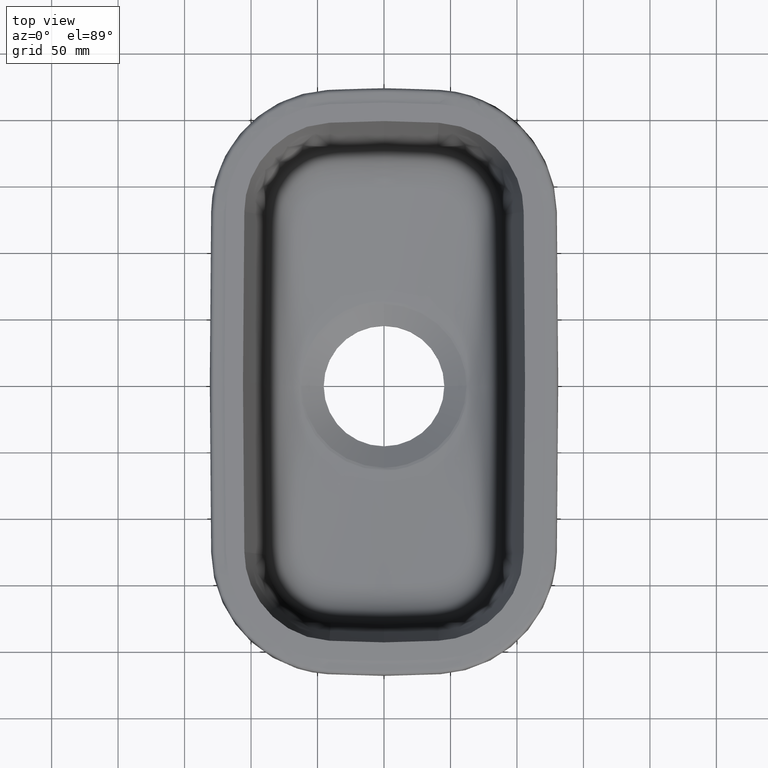
[diagram: clean part render]
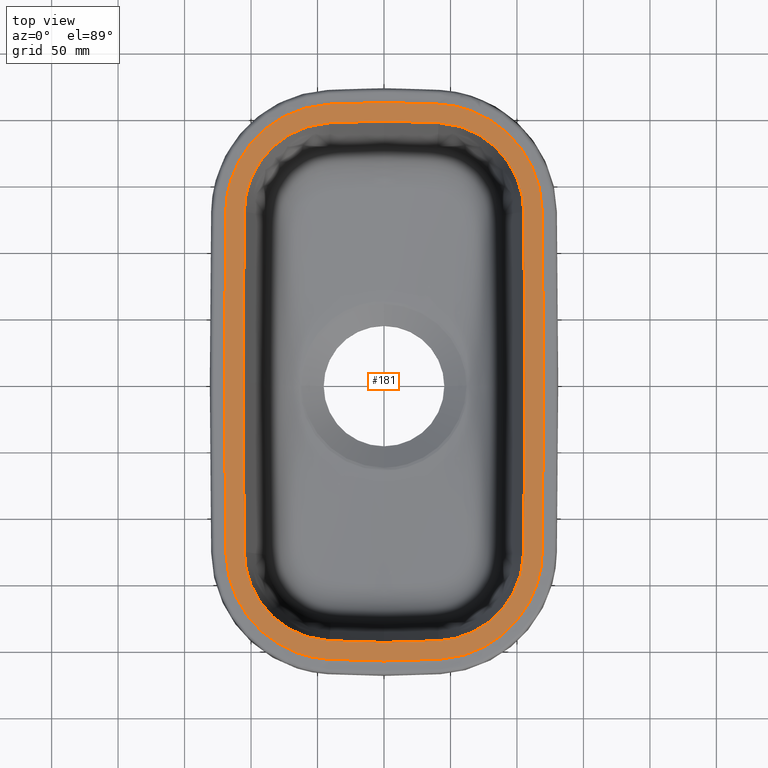
[diagram: same view with one face highlighted and labeled with its STEP entity id]
A machine part, top view. The second image highlights one B-rep face of the part: STEP entity #181.
In plain terms, the highlighted planar face has unit normal (0, 0, 1).
Its self-contained STEP definition (entity closure, byte-faithful):
#45=FACE_BOUND('',#368,.T.);
#46=FACE_BOUND('',#369,.T.);
#55=PLANE('',#1298);
#181=ADVANCED_FACE('',(#45,#46),#55,.T.);
#368=EDGE_LOOP('',(#782,#783,#784,#785,#786,#787,#788,#789,#790,#791,#792,
#793));
#369=EDGE_LOOP('',(#794,#795,#796,#797,#798,#799,#800,#801,#802,#803,#804,
#805));
#424=(
BOUNDED_CURVE()
B_SPLINE_CURVE(3,(#73449,#73450,#73451,#73452,#73453,#73454,#73455),
 .UNSPECIFIED.,.F.,.F.)
B_SPLINE_CURVE_WITH_KNOTS((4,1,1,1,4),(0.,0.25,0.5,0.75,1.),
 .UNSPECIFIED.)
CURVE()
GEOMETRIC_REPRESENTATION_ITEM()
RATIONAL_B_SPLINE_CURVE((1.,0.955564956617656,0.888912391544141,0.855586109007383,
0.888912391544141,0.955564956617656,1.))
REPRESENTATION_ITEM('')
);
#426=(
BOUNDED_CURVE()
B_SPLINE_CURVE(3,(#74508,#74509,#74510,#74511,#74512,#74513,#74514),
 .UNSPECIFIED.,.F.,.F.)
B_SPLINE_CURVE_WITH_KNOTS((4,1,1,1,4),(0.,0.25,0.5,0.75,1.),
 .UNSPECIFIED.)
CURVE()
GEOMETRIC_REPRESENTATION_ITEM()
RATIONAL_B_SPLINE_CURVE((1.,0.955564956617656,0.888912391544141,0.855586109007383,
0.888912391544141,0.955564956617656,1.))
REPRESENTATION_ITEM('')
);
#428=(
BOUNDED_CURVE()
B_SPLINE_CURVE(3,(#75503,#75504,#75505,#75506,#75507,#75508,#75509),
 .UNSPECIFIED.,.F.,.F.)
B_SPLINE_CURVE_WITH_KNOTS((4,1,1,1,4),(0.,0.25,0.5,0.75,1.),
 .UNSPECIFIED.)
CURVE()
GEOMETRIC_REPRESENTATION_ITEM()
RATIONAL_B_SPLINE_CURVE((1.,0.955564956617656,0.888912391544141,0.855586109007383,
0.888912391544141,0.955564956617656,1.))
REPRESENTATION_ITEM('')
);
#429=(
BOUNDED_CURVE()
B_SPLINE_CURVE(3,(#75999,#76000,#76001,#76002,#76003,#76004,#76005),
 .UNSPECIFIED.,.F.,.F.)
B_SPLINE_CURVE_WITH_KNOTS((4,1,1,1,4),(0.,0.25,0.5,0.75,1.),
 .UNSPECIFIED.)
CURVE()
GEOMETRIC_REPRESENTATION_ITEM()
RATIONAL_B_SPLINE_CURVE((1.,0.955564956617656,0.888912391544141,0.855586109007383,
0.888912391544141,0.955564956617656,1.))
REPRESENTATION_ITEM('')
);
#431=(
BOUNDED_CURVE()
B_SPLINE_CURVE(3,(#77064,#77065,#77066,#77067,#77068,#77069,#77070),
 .UNSPECIFIED.,.F.,.F.)
B_SPLINE_CURVE_WITH_KNOTS((4,1,1,1,4),(0.,0.25,0.5,0.75,1.),
 .UNSPECIFIED.)
CURVE()
GEOMETRIC_REPRESENTATION_ITEM()
RATIONAL_B_SPLINE_CURVE((1.,0.955564956617656,0.888912391544141,0.855586109007383,
0.888912391544141,0.955564956617656,1.))
REPRESENTATION_ITEM('')
);
#433=(
BOUNDED_CURVE()
B_SPLINE_CURVE(3,(#78099,#78100,#78101,#78102,#78103,#78104,#78105),
 .UNSPECIFIED.,.F.,.F.)
B_SPLINE_CURVE_WITH_KNOTS((4,1,1,1,4),(0.,0.25,0.5,0.75,1.),
 .UNSPECIFIED.)
CURVE()
GEOMETRIC_REPRESENTATION_ITEM()
RATIONAL_B_SPLINE_CURVE((1.,0.955564956617656,0.888912391544141,0.855586109007383,
0.888912391544141,0.955564956617656,1.))
REPRESENTATION_ITEM('')
);
#435=(
BOUNDED_CURVE()
B_SPLINE_CURVE(3,(#79134,#79135,#79136,#79137,#79138,#79139,#79140),
 .UNSPECIFIED.,.F.,.F.)
B_SPLINE_CURVE_WITH_KNOTS((4,1,1,1,4),(0.,0.25,0.5,0.75,1.),
 .UNSPECIFIED.)
CURVE()
GEOMETRIC_REPRESENTATION_ITEM()
RATIONAL_B_SPLINE_CURVE((1.,0.955564956617656,0.888912391544141,0.855586109007383,
0.888912391544141,0.955564956617656,1.))
REPRESENTATION_ITEM('')
);
#436=(
BOUNDED_CURVE()
B_SPLINE_CURVE(3,(#89732,#89733,#89734,#89735,#89736,#89737,#89738),
 .UNSPECIFIED.,.F.,.F.)
B_SPLINE_CURVE_WITH_KNOTS((4,1,1,1,4),(0.,0.25,0.5,0.75,1.),
 .UNSPECIFIED.)
CURVE()
GEOMETRIC_REPRESENTATION_ITEM()
RATIONAL_B_SPLINE_CURVE((1.,0.955564956617656,0.888912391544141,0.855586109007383,
0.888912391544141,0.955564956617656,1.))
REPRESENTATION_ITEM('')
);
#782=ORIENTED_EDGE('',*,*,#1068,.T.);
#783=ORIENTED_EDGE('',*,*,#1072,.T.);
#784=ORIENTED_EDGE('',*,*,#1075,.T.);
#785=ORIENTED_EDGE('',*,*,#1077,.T.);
#786=ORIENTED_EDGE('',*,*,#1079,.T.);
#787=ORIENTED_EDGE('',*,*,#1081,.T.);
#788=ORIENTED_EDGE('',*,*,#1084,.T.);
#789=ORIENTED_EDGE('',*,*,#1111,.T.);
#790=ORIENTED_EDGE('',*,*,#1120,.F.);
#791=ORIENTED_EDGE('',*,*,#1121,.F.);
#792=ORIENTED_EDGE('',*,*,#1122,.F.);
#793=ORIENTED_EDGE('',*,*,#1118,.T.);
#794=ORIENTED_EDGE('',*,*,#1087,.T.);
#795=ORIENTED_EDGE('',*,*,#1090,.T.);
#796=ORIENTED_EDGE('',*,*,#1092,.T.);
#797=ORIENTED_EDGE('',*,*,#1094,.T.);
#798=ORIENTED_EDGE('',*,*,#1096,.T.);
#799=ORIENTED_EDGE('',*,*,#1098,.T.);
#800=ORIENTED_EDGE('',*,*,#1100,.T.);
#801=ORIENTED_EDGE('',*,*,#1102,.T.);
#802=ORIENTED_EDGE('',*,*,#1104,.T.);
#803=ORIENTED_EDGE('',*,*,#1106,.T.);
#804=ORIENTED_EDGE('',*,*,#1108,.T.);
#805=ORIENTED_EDGE('',*,*,#1110,.T.);
#904=VERTEX_POINT('',#73456);
#905=VERTEX_POINT('',#73457);
#908=VERTEX_POINT('',#73962);
#909=VERTEX_POINT('',#74248);
#910=VERTEX_POINT('',#74515);
#911=VERTEX_POINT('',#74965);
#912=VERTEX_POINT('',#75229);
#914=VERTEX_POINT('',#75510);
#916=VERTEX_POINT('',#76006);
#917=VERTEX_POINT('',#76007);
#918=VERTEX_POINT('',#76504);
#919=VERTEX_POINT('',#76786);
#920=VERTEX_POINT('',#77071);
#921=VERTEX_POINT('',#77539);
#922=VERTEX_POINT('',#77821);
#923=VERTEX_POINT('',#78106);
#924=VERTEX_POINT('',#78574);
#925=VERTEX_POINT('',#78856);
#926=VERTEX_POINT('',#79141);
#927=VERTEX_POINT('',#79609);
#928=VERTEX_POINT('',#80143);
#931=VERTEX_POINT('',#89467);
#932=VERTEX_POINT('',#89731);
#933=VERTEX_POINT('',#89739);
#1068=EDGE_CURVE('',#904,#905,#424,.T.);
#1072=EDGE_CURVE('',#905,#908,#1223,.T.);
#1075=EDGE_CURVE('',#908,#909,#1226,.T.);
#1077=EDGE_CURVE('',#909,#910,#426,.T.);
#1079=EDGE_CURVE('',#910,#911,#1228,.T.);
#1081=EDGE_CURVE('',#911,#912,#1230,.T.);
#1084=EDGE_CURVE('',#912,#914,#428,.T.);
#1087=EDGE_CURVE('',#916,#917,#429,.T.);
#1090=EDGE_CURVE('',#917,#918,#1236,.T.);
#1092=EDGE_CURVE('',#918,#919,#1238,.T.);
#1094=EDGE_CURVE('',#919,#920,#431,.T.);
#1096=EDGE_CURVE('',#920,#921,#1240,.T.);
#1098=EDGE_CURVE('',#921,#922,#1242,.T.);
#1100=EDGE_CURVE('',#922,#923,#433,.T.);
#1102=EDGE_CURVE('',#923,#924,#1244,.T.);
#1104=EDGE_CURVE('',#924,#925,#1246,.T.);
#1106=EDGE_CURVE('',#925,#926,#435,.T.);
#1108=EDGE_CURVE('',#926,#927,#1248,.T.);
#1110=EDGE_CURVE('',#927,#916,#1250,.T.);
#1111=EDGE_CURVE('',#914,#928,#1251,.T.);
#1118=EDGE_CURVE('',#931,#904,#1258,.T.);
#1120=EDGE_CURVE('',#932,#928,#1260,.T.);
#1121=EDGE_CURVE('',#933,#932,#436,.T.);
#1122=EDGE_CURVE('',#931,#933,#1261,.T.);
#1223=B_SPLINE_CURVE_WITH_KNOTS('',3,(#73958,#73959,#73960,#73961),
 .UNSPECIFIED.,.F.,.F.,(4,4),(0.,1.),.UNSPECIFIED.);
#1226=B_SPLINE_CURVE_WITH_KNOTS('',3,(#74244,#74245,#74246,#74247),
 .UNSPECIFIED.,.F.,.F.,(4,4),(0.,1.),.UNSPECIFIED.);
#1228=B_SPLINE_CURVE_WITH_KNOTS('',3,(#74961,#74962,#74963,#74964),
 .UNSPECIFIED.,.F.,.F.,(4,4),(0.,1.),.UNSPECIFIED.);
#1230=B_SPLINE_CURVE_WITH_KNOTS('',3,(#75225,#75226,#75227,#75228),
 .UNSPECIFIED.,.F.,.F.,(4,4),(0.,1.),.UNSPECIFIED.);
#1236=B_SPLINE_CURVE_WITH_KNOTS('',3,(#76500,#76501,#76502,#76503),
 .UNSPECIFIED.,.F.,.F.,(4,4),(0.,1.),.UNSPECIFIED.);
#1238=B_SPLINE_CURVE_WITH_KNOTS('',3,(#76782,#76783,#76784,#76785),
 .UNSPECIFIED.,.F.,.F.,(4,4),(0.,1.),.UNSPECIFIED.);
#1240=B_SPLINE_CURVE_WITH_KNOTS('',3,(#77535,#77536,#77537,#77538),
 .UNSPECIFIED.,.F.,.F.,(4,4),(0.,1.),.UNSPECIFIED.);
#1242=B_SPLINE_CURVE_WITH_KNOTS('',3,(#77817,#77818,#77819,#77820),
 .UNSPECIFIED.,.F.,.F.,(4,4),(0.,1.),.UNSPECIFIED.);
#1244=B_SPLINE_CURVE_WITH_KNOTS('',3,(#78570,#78571,#78572,#78573),
 .UNSPECIFIED.,.F.,.F.,(4,4),(0.,1.),.UNSPECIFIED.);
#1246=B_SPLINE_CURVE_WITH_KNOTS('',3,(#78852,#78853,#78854,#78855),
 .UNSPECIFIED.,.F.,.F.,(4,4),(0.,1.),.UNSPECIFIED.);
#1248=B_SPLINE_CURVE_WITH_KNOTS('',3,(#79605,#79606,#79607,#79608),
 .UNSPECIFIED.,.F.,.F.,(4,4),(0.,1.),.UNSPECIFIED.);
#1250=B_SPLINE_CURVE_WITH_KNOTS('',3,(#79887,#79888,#79889,#79890),
 .UNSPECIFIED.,.F.,.F.,(4,4),(0.,1.),.UNSPECIFIED.);
#1251=B_SPLINE_CURVE_WITH_KNOTS('',3,(#80139,#80140,#80141,#80142),
 .UNSPECIFIED.,.F.,.F.,(4,4),(0.,1.),.UNSPECIFIED.);
#1258=B_SPLINE_CURVE_WITH_KNOTS('',3,(#89463,#89464,#89465,#89466),
 .UNSPECIFIED.,.F.,.F.,(4,4),(0.,1.),.UNSPECIFIED.);
#1260=B_SPLINE_CURVE_WITH_KNOTS('',3,(#89727,#89728,#89729,#89730),
 .UNSPECIFIED.,.F.,.F.,(4,4),(0.,1.),.UNSPECIFIED.);
#1261=B_SPLINE_CURVE_WITH_KNOTS('',3,(#89740,#89741,#89742,#89743),
 .UNSPECIFIED.,.F.,.F.,(4,4),(0.,1.),.UNSPECIFIED.);
#1298=AXIS2_PLACEMENT_3D('',#89744,#1377,#1378);
#1377=DIRECTION('',(0.,0.,1.));
#1378=DIRECTION('',(1.,0.,0.));
#73449=CARTESIAN_POINT('',(41.0691676275356,194.823956789116,175.499999415881));
#73450=CARTESIAN_POINT('',(49.9077053708104,194.293656981675,175.499999415881));
#73451=CARTESIAN_POINT('',(65.8286872184911,190.503901122272,175.499999415881));
#73452=CARTESIAN_POINT('',(87.5573389194098,175.273881621963,175.499999415881));
#73453=CARTESIAN_POINT('',(101.815524731004,152.895500624186,175.499999415881));
#73454=CARTESIAN_POINT('',(104.900352235661,136.82304742828,175.499999415881));
#73455=CARTESIAN_POINT('',(105.040837995178,127.96972990916,175.499999415881));
#73456=CARTESIAN_POINT('',(41.0691676274681,194.823956787992,175.49999940705));
#73457=CARTESIAN_POINT('',(105.040837995182,127.96972990916,175.499999417129));
#73958=CARTESIAN_POINT('',(105.040837995178,127.96972990916,175.499999415881));
#73959=CARTESIAN_POINT('',(105.718241805081,85.2802001068341,175.499999415881));
#73960=CARTESIAN_POINT('',(106.056943654781,42.6401000420839,175.499999415881));
#73961=CARTESIAN_POINT('',(106.056943544251,-3.12648205935684E-8,175.499999415881));
#73962=CARTESIAN_POINT('',(106.056943543616,6.22997404768117E-15,175.499999413456));
#74244=CARTESIAN_POINT('',(106.056943544251,3.12648240630153E-8,175.499999415881));
#74245=CARTESIAN_POINT('',(106.056943654781,-42.6401000420839,175.499999415881));
#74246=CARTESIAN_POINT('',(105.718241805081,-85.2802001068341,175.499999415881));
#74247=CARTESIAN_POINT('',(105.040837995178,-127.96972990916,175.499999415881));
#74248=CARTESIAN_POINT('',(105.040837995181,-127.96972990916,175.499999417121));
#74508=CARTESIAN_POINT('',(105.040837995178,-127.96972990916,175.499999415881));
#74509=CARTESIAN_POINT('',(104.900352235661,-136.82304742828,175.499999415881));
#74510=CARTESIAN_POINT('',(101.815524731004,-152.895500624186,175.499999415881));
#74511=CARTESIAN_POINT('',(87.5573389194097,-175.273881621963,175.499999415881));
#74512=CARTESIAN_POINT('',(65.8286872184911,-190.503901122272,175.499999415881));
#74513=CARTESIAN_POINT('',(49.9077053708104,-194.293656981675,175.499999415881));
#74514=CARTESIAN_POINT('',(41.0691676275356,-194.823956789116,175.499999415881));
#74515=CARTESIAN_POINT('',(41.0691676274681,-194.823956787992,175.499999407049));
#74961=CARTESIAN_POINT('',(41.0691676275356,-194.823956789116,175.499999415881));
#74962=CARTESIAN_POINT('',(27.255746873831,-195.65274256439,175.499999415881));
#74963=CARTESIAN_POINT('',(13.8143060345944,-196.056182208065,175.499999415881));
#74964=CARTESIAN_POINT('',(-1.9432021202271E-12,-196.056182208065,175.499999415881));
#74965=CARTESIAN_POINT('',(7.74397140523785E-23,-196.056182208068,175.499999417129));
#75225=CARTESIAN_POINT('',(1.9432021202271E-12,-196.056182208065,175.499999415881));
#75226=CARTESIAN_POINT('',(-13.8143060345944,-196.056182208065,175.499999415881));
#75227=CARTESIAN_POINT('',(-27.255746873831,-195.65274256439,175.499999415881));
#75228=CARTESIAN_POINT('',(-41.0691676275356,-194.823956789116,175.499999415881));
#75229=CARTESIAN_POINT('',(-41.0691676274681,-194.823956787992,175.49999940705));
#75503=CARTESIAN_POINT('',(-41.0691676275356,-194.823956789116,175.499999415881));
#75504=CARTESIAN_POINT('',(-49.9077053708104,-194.293656981675,175.499999415881));
#75505=CARTESIAN_POINT('',(-65.8286872184911,-190.503901122272,175.499999415881));
#75506=CARTESIAN_POINT('',(-87.5573389194098,-175.273881621963,175.499999415881));
#75507=CARTESIAN_POINT('',(-101.815524731004,-152.895500624186,175.499999415881));
#75508=CARTESIAN_POINT('',(-104.900352235661,-136.82304742828,175.499999415881));
#75509=CARTESIAN_POINT('',(-105.040837995178,-127.96972990916,175.499999415881));
#75510=CARTESIAN_POINT('',(-105.040837995182,-127.96972990916,175.499999417129));
#75999=CARTESIAN_POINT('',(-119.01509971421,-128.191475573094,175.4999994175));
#76000=CARTESIAN_POINT('',(-118.855300103977,-138.261938897495,175.4999994175));
#76001=CARTESIAN_POINT('',(-115.037580853426,-158.152877329861,175.4999994175));
#76002=CARTESIAN_POINT('',(-97.8524631077407,-185.125110507793,175.4999994175));
#76003=CARTESIAN_POINT('',(-71.6633361830778,-203.481560749103,175.4999994175));
#76004=CARTESIAN_POINT('',(-51.9598555846271,-208.171684873546,175.4999994175));
#76005=CARTESIAN_POINT('',(-41.9062039451153,-208.774889802163,175.4999994175));
#76006=CARTESIAN_POINT('',(-119.015099713321,-128.19147557308,175.499999418118));
#76007=CARTESIAN_POINT('',(-41.9062039446836,-208.7748898013,175.499999418117));
#76500=CARTESIAN_POINT('',(-41.9062039451153,-208.774889802163,175.4999994175));
#76501=CARTESIAN_POINT('',(-27.8840536658627,-209.616199054766,175.4999994175));
#76502=CARTESIAN_POINT('',(-14.0240012472847,-210.032203162953,175.4999994175));
#76503=CARTESIAN_POINT('',(-4.21918379997104E-11,-210.032203162953,175.4999994175));
#76504=CARTESIAN_POINT('',(-8.24411411008558E-20,-210.032203162066,175.499999418117));
#76782=CARTESIAN_POINT('',(4.21918379997041E-11,-210.032203162953,175.4999994175));
#76783=CARTESIAN_POINT('',(14.0240012472847,-210.032203162953,175.4999994175));
#76784=CARTESIAN_POINT('',(27.8840536658627,-209.616199054767,175.4999994175));
#76785=CARTESIAN_POINT('',(41.9062039451153,-208.774889802163,175.4999994175));
#76786=CARTESIAN_POINT('',(41.9062039450622,-208.774889801278,175.499999418117));
#77064=CARTESIAN_POINT('',(41.9062039451153,-208.774889802163,175.4999994175));
#77065=CARTESIAN_POINT('',(51.9598555846271,-208.171684873546,175.4999994175));
#77066=CARTESIAN_POINT('',(71.6633361830778,-203.481560749103,175.4999994175));
#77067=CARTESIAN_POINT('',(97.8524631077407,-185.125110507793,175.4999994175));
#77068=CARTESIAN_POINT('',(115.037580853426,-158.152877329861,175.4999994175));
#77069=CARTESIAN_POINT('',(118.855300103977,-138.261938897495,175.4999994175));
#77070=CARTESIAN_POINT('',(119.01509971421,-128.191475573094,175.4999994175));
#77071=CARTESIAN_POINT('',(119.015099713327,-128.191475572701,175.499999418118));
#77535=CARTESIAN_POINT('',(119.01509971421,-128.191475573094,175.4999994175));
#77536=CARTESIAN_POINT('',(119.693383141949,-85.4465128498784,175.4999994175));
#77537=CARTESIAN_POINT('',(120.032524800612,-42.7232564132963,175.4999994175));
#77538=CARTESIAN_POINT('',(120.032524690176,2.73541744810757E-8,175.4999994175));
#77539=CARTESIAN_POINT('',(120.032524692342,3.21130737772097E-15,175.499999417168));
#77817=CARTESIAN_POINT('',(120.032524690175,-2.73541744810757E-8,175.4999994175));
#77818=CARTESIAN_POINT('',(120.032524800612,42.7232564132963,175.4999994175));
#77819=CARTESIAN_POINT('',(119.693383141949,85.4465128498784,175.4999994175));
#77820=CARTESIAN_POINT('',(119.01509971421,128.191475573094,175.4999994175));
#77821=CARTESIAN_POINT('',(119.015099713321,128.19147557308,175.499999418118));
#78099=CARTESIAN_POINT('',(119.01509971421,128.191475573094,175.4999994175));
#78100=CARTESIAN_POINT('',(118.855300103977,138.261938897495,175.4999994175));
#78101=CARTESIAN_POINT('',(115.037580853426,158.152877329861,175.4999994175));
#78102=CARTESIAN_POINT('',(97.8524631077407,185.125110507793,175.4999994175));
#78103=CARTESIAN_POINT('',(71.6633361830778,203.481560749103,175.4999994175));
#78104=CARTESIAN_POINT('',(51.9598555846271,208.171684873546,175.4999994175));
#78105=CARTESIAN_POINT('',(41.9062039451153,208.774889802163,175.4999994175));
#78106=CARTESIAN_POINT('',(41.9062039446836,208.7748898013,175.499999418117));
#78570=CARTESIAN_POINT('',(41.9062039451153,208.774889802163,175.4999994175));
#78571=CARTESIAN_POINT('',(27.8840536658627,209.616199054766,175.4999994175));
#78572=CARTESIAN_POINT('',(14.0240012472847,210.032203162953,175.4999994175));
#78573=CARTESIAN_POINT('',(4.21918379997104E-11,210.032203162953,175.4999994175));
#78574=CARTESIAN_POINT('',(8.24411411008558E-20,210.032203162066,175.499999418117));
#78852=CARTESIAN_POINT('',(-4.21918379997041E-11,210.032203162953,175.4999994175));
#78853=CARTESIAN_POINT('',(-14.0240012472847,210.032203162953,175.4999994175));
#78854=CARTESIAN_POINT('',(-27.8840536658627,209.616199054767,175.4999994175));
#78855=CARTESIAN_POINT('',(-41.9062039451153,208.774889802163,175.4999994175));
#78856=CARTESIAN_POINT('',(-41.9062039450622,208.774889801278,175.499999418117));
#79134=CARTESIAN_POINT('',(-41.9062039451153,208.774889802163,175.4999994175));
#79135=CARTESIAN_POINT('',(-51.9598555846271,208.171684873546,175.4999994175));
#79136=CARTESIAN_POINT('',(-71.6633361830778,203.481560749103,175.4999994175));
#79137=CARTESIAN_POINT('',(-97.8524631077407,185.125110507793,175.4999994175));
#79138=CARTESIAN_POINT('',(-115.037580853426,158.152877329861,175.4999994175));
#79139=CARTESIAN_POINT('',(-118.855300103977,138.261938897495,175.4999994175));
#79140=CARTESIAN_POINT('',(-119.01509971421,128.191475573094,175.4999994175));
#79141=CARTESIAN_POINT('',(-119.015099713327,128.191475572701,175.499999418118));
#79605=CARTESIAN_POINT('',(-119.01509971421,128.191475573094,175.4999994175));
#79606=CARTESIAN_POINT('',(-119.693383141949,85.4465128498785,175.4999994175));
#79607=CARTESIAN_POINT('',(-120.032524800612,42.7232564132963,175.4999994175));
#79608=CARTESIAN_POINT('',(-120.032524690176,-2.73541155004775E-8,175.4999994175));
#79609=CARTESIAN_POINT('',(-120.032524692342,3.09671681530955E-14,175.499999417168));
#79887=CARTESIAN_POINT('',(-120.032524690175,2.73541987672044E-8,175.4999994175));
#79888=CARTESIAN_POINT('',(-120.032524800612,-42.7232564132963,175.4999994175));
#79889=CARTESIAN_POINT('',(-119.693383141949,-85.4465128498784,175.4999994175));
#79890=CARTESIAN_POINT('',(-119.01509971421,-128.191475573094,175.4999994175));
#80139=CARTESIAN_POINT('',(-105.040837995178,-127.96972990916,175.499999415881));
#80140=CARTESIAN_POINT('',(-105.718241805081,-85.2802001068341,175.499999415881));
#80141=CARTESIAN_POINT('',(-106.056943654781,-42.6401000420839,175.499999415881));
#80142=CARTESIAN_POINT('',(-106.056943544251,3.12648205935684E-8,175.499999415881));
#80143=CARTESIAN_POINT('',(-106.056943543616,6.22997404768117E-15,175.499999413456));
#89463=CARTESIAN_POINT('',(-1.9432021202271E-12,196.056182208065,175.499999415881));
#89464=CARTESIAN_POINT('',(13.8143060345944,196.056182208065,175.499999415881));
#89465=CARTESIAN_POINT('',(27.255746873831,195.65274256439,175.499999415881));
#89466=CARTESIAN_POINT('',(41.0691676275356,194.823956789116,175.499999415881));
#89467=CARTESIAN_POINT('',(-7.7439418229539E-23,196.056182208068,175.499999417129));
#89727=CARTESIAN_POINT('',(-105.040837995178,127.96972990916,175.499999415881));
#89728=CARTESIAN_POINT('',(-105.718241805081,85.2802001068341,175.499999415881));
#89729=CARTESIAN_POINT('',(-106.056943654781,42.6401000420839,175.499999415881));
#89730=CARTESIAN_POINT('',(-106.056943544251,-3.12648240630153E-8,175.499999415881));
#89731=CARTESIAN_POINT('',(-105.040837995181,127.96972990916,175.499999417121));
#89732=CARTESIAN_POINT('',(-41.0691676275356,194.823956789116,175.499999415881));
#89733=CARTESIAN_POINT('',(-49.9077053708104,194.293656981675,175.499999415881));
#89734=CARTESIAN_POINT('',(-65.8286872184911,190.503901122272,175.499999415881));
#89735=CARTESIAN_POINT('',(-87.5573389194097,175.273881621963,175.499999415881));
#89736=CARTESIAN_POINT('',(-101.815524731004,152.895500624186,175.499999415881));
#89737=CARTESIAN_POINT('',(-104.900352235661,136.82304742828,175.499999415881));
#89738=CARTESIAN_POINT('',(-105.040837995178,127.96972990916,175.499999415881));
#89739=CARTESIAN_POINT('',(-41.0691676274681,194.823956787992,175.499999407049));
#89740=CARTESIAN_POINT('',(1.9432021202271E-12,196.056182208065,175.499999415881));
#89741=CARTESIAN_POINT('',(-13.8143060345944,196.056182208065,175.499999415881));
#89742=CARTESIAN_POINT('',(-27.255746873831,195.65274256439,175.499999415881));
#89743=CARTESIAN_POINT('',(-41.0691676275356,194.823956789116,175.499999415881));
#89744=CARTESIAN_POINT('',(1.37919817239372E-11,214.468456271962,175.499999418347));